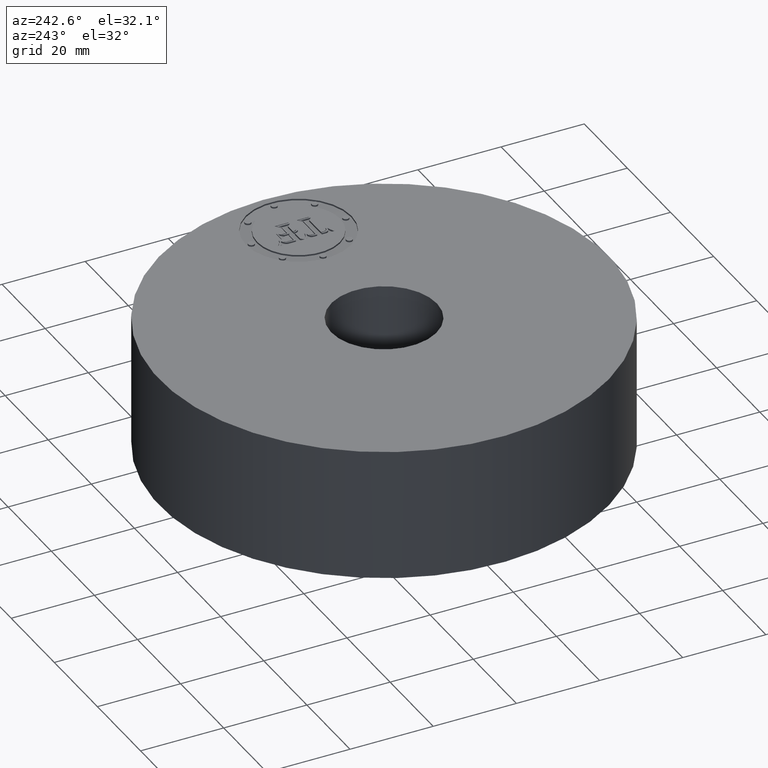
[diagram: clean part render]
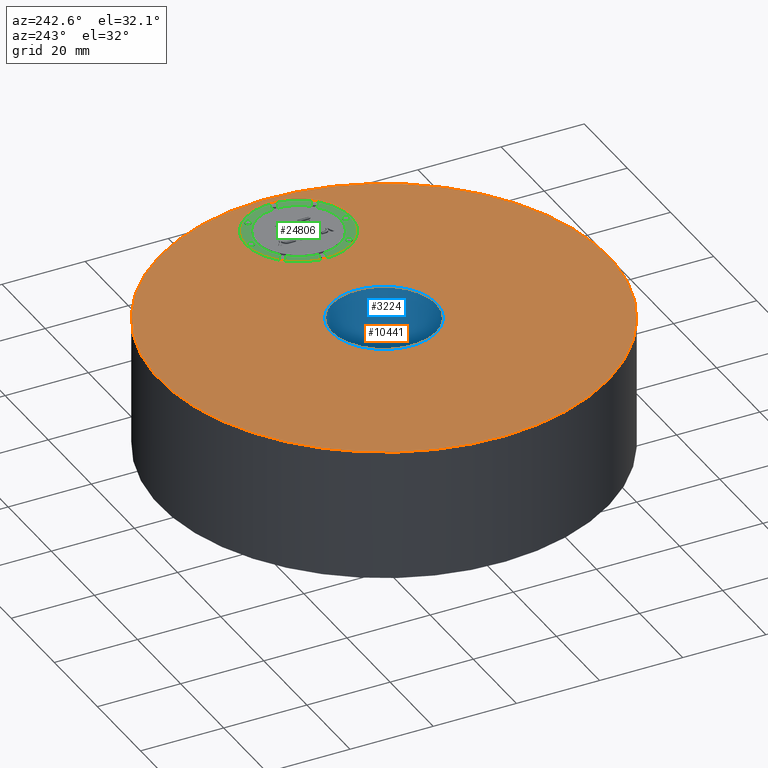
[diagram: same view with three faces highlighted in distinct colors, each labeled with its STEP entity id]
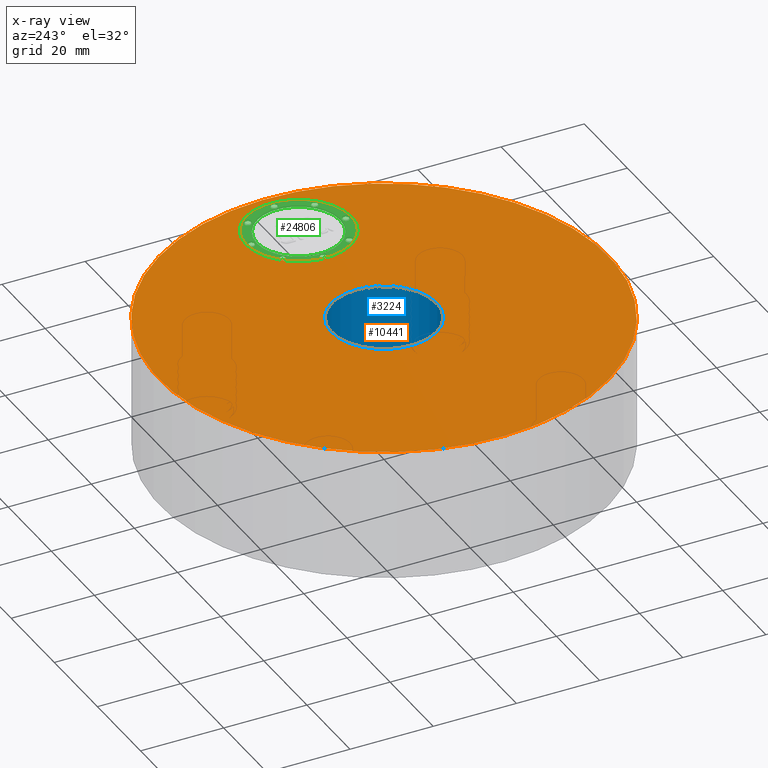
[diagram: x-ray of the same camera — body ghosted, the three highlighted faces saturated]
A machine part, auxiliary view with three faces highlighted in distinct colors.
The next image is the same camera in x-ray (body ghosted, the three faces saturated) — at least one of them is partly hidden behind the body in this view.
Their STEP definitions:

[orange] entity #10441 — the highlighted planar face has unit normal (0, 0, -1).
#2689=AXIS2_PLACEMENT_3D('Circle Axis2P3D',#2687,#2688,$) ;
#2708=AXIS2_PLACEMENT_3D('Circle Axis2P3D',#2706,#2707,$) ;
#3201=AXIS2_PLACEMENT_3D('Circle Axis2P3D',#3199,#3200,$) ;
#3227=AXIS2_PLACEMENT_3D('Circle Axis2P3D',#3225,#3226,$) ;
#10413=AXIS2_PLACEMENT_3D('Plane Axis2P3D',#10410,#10411,#10412) ;
#10425=AXIS2_PLACEMENT_3D('Circle Axis2P3D',#10423,#10424,$) ;
#10434=AXIS2_PLACEMENT_3D('Circle Axis2P3D',#10432,#10433,$) ;
#2684=CARTESIAN_POINT('Vertex',(-1.01877926954,-1.86486294402,1.25)) ;
#2687=CARTESIAN_POINT('Axis2P3D Location',(0.,0.,1.25)) ;
#2691=CARTESIAN_POINT('Vertex',(1.01877926954,1.86486294402,1.25)) ;
#2706=CARTESIAN_POINT('Axis2P3D Location',(0.,0.,1.25)) ;
#3199=CARTESIAN_POINT('Axis2P3D Location',(0.,0.,1.25000000001)) ;
#3203=CARTESIAN_POINT('Vertex',(0.239712769303,0.438791280947,1.25000000001)) ;
#3205=CARTESIAN_POINT('Vertex',(-0.239712769303,-0.438791280947,1.25000000001)) ;
#3225=CARTESIAN_POINT('Axis2P3D Location',(0.,0.,1.25000000001)) ;
#10410=CARTESIAN_POINT('Axis2P3D Location',(0.,0.500000000002,1.25000000001)) ;
#10423=CARTESIAN_POINT('Axis2P3D Location',(1.56000000001,0.,1.25000000001)) ;
#10427=CARTESIAN_POINT('Vertex',(1.56000000001,-0.499999995002,1.25000000001)) ;
#10429=CARTESIAN_POINT('Vertex',(1.56000000001,0.499999995002,1.25000000001)) ;
#10432=CARTESIAN_POINT('Axis2P3D Location',(1.56000000001,0.,1.25000000001)) ;
#2688=DIRECTION('Axis2P3D Direction',(0.,0.,-0.0393700787402)) ;
#2707=DIRECTION('Axis2P3D Direction',(0.,0.,-0.0393700787402)) ;
#3200=DIRECTION('Axis2P3D Direction',(0.,0.,-0.0393700787402)) ;
#3226=DIRECTION('Axis2P3D Direction',(0.,0.,-0.0393700787402)) ;
#10411=DIRECTION('Axis2P3D Direction',(0.,0.,-0.0393700787402)) ;
#10412=DIRECTION('Axis2P3D XDirection',(0.0393700787402,0.,0.)) ;
#10424=DIRECTION('Axis2P3D Direction',(0.,0.,-0.0393700787402)) ;
#10433=DIRECTION('Axis2P3D Direction',(0.,0.,-0.0393700787402)) ;
#10416=ORIENTED_EDGE('',*,*,#2710,.F.) ;
#10417=ORIENTED_EDGE('',*,*,#2693,.F.) ;
#10420=ORIENTED_EDGE('',*,*,#3229,.T.) ;
#10421=ORIENTED_EDGE('',*,*,#3207,.T.) ;
#10438=ORIENTED_EDGE('',*,*,#10431,.F.) ;
#10439=ORIENTED_EDGE('',*,*,#10436,.F.) ;
#10422=FACE_BOUND('',#10419,.T.) ;
#10440=FACE_BOUND('',#10437,.T.) ;
#10441=ADVANCED_FACE('PartBody',(#10418,#10422,#10440),#10414,.F.) ;
#2690=CIRCLE('generated circle',#2689,2.12500000001) ;
#2709=CIRCLE('generated circle',#2708,2.12500000001) ;
#3202=CIRCLE('generated circle',#3201,0.500000000002) ;
#3228=CIRCLE('generated circle',#3227,0.500000000002) ;
#10426=CIRCLE('generated circle',#10425,0.499999995002) ;
#10435=CIRCLE('generated circle',#10434,0.499999995002) ;
#2693=EDGE_CURVE('',#2685,#2692,#2690,.T.) ;
#2710=EDGE_CURVE('',#2692,#2685,#2709,.T.) ;
#3207=EDGE_CURVE('',#3204,#3206,#3202,.T.) ;
#3229=EDGE_CURVE('',#3206,#3204,#3228,.T.) ;
#10431=EDGE_CURVE('',#10428,#10430,#10426,.F.) ;
#10436=EDGE_CURVE('',#10430,#10428,#10435,.F.) ;
#10415=EDGE_LOOP('',(#10416,#10417)) ;
#10419=EDGE_LOOP('',(#10420,#10421)) ;
#10437=EDGE_LOOP('',(#10438,#10439)) ;
#10418=FACE_OUTER_BOUND('',#10415,.T.) ;
#10414=PLANE('',#10413) ;
#2685=VERTEX_POINT('',#2684) ;
#2692=VERTEX_POINT('',#2691) ;
#3204=VERTEX_POINT('',#3203) ;
#3206=VERTEX_POINT('',#3205) ;
#10428=VERTEX_POINT('',#10427) ;
#10430=VERTEX_POINT('',#10429) ;

[blue] entity #3224 — the highlighted cylindrical surface (partial cylindrical patch) has radius 12.7 mm, axis along (0, 0, -1).
#3177=AXIS2_PLACEMENT_3D('Circle Axis2P3D',#3175,#3176,$) ;
#3197=AXIS2_PLACEMENT_3D('Cylinder Axis2P3D',#3194,#3195,#3196) ;
#3201=AXIS2_PLACEMENT_3D('Circle Axis2P3D',#3199,#3200,$) ;
#3175=CARTESIAN_POINT('Axis2P3D Location',(0.,0.,-0.0625000000003)) ;
#3179=CARTESIAN_POINT('Vertex',(0.239712769303,0.438791280947,-0.0625000000003)) ;
#3181=CARTESIAN_POINT('Vertex',(-0.239712769303,-0.438791280947,-0.0625000000003)) ;
#3194=CARTESIAN_POINT('Axis2P3D Location',(0.,0.,0.593750000002)) ;
#3199=CARTESIAN_POINT('Axis2P3D Location',(0.,0.,1.25000000001)) ;
#3203=CARTESIAN_POINT('Vertex',(0.239712769303,0.438791280947,1.25000000001)) ;
#3205=CARTESIAN_POINT('Vertex',(-0.239712769303,-0.438791280947,1.25000000001)) ;
#3208=CARTESIAN_POINT('Line Origine',(0.239712769303,0.438791280947,0.593750000002)) ;
#3213=CARTESIAN_POINT('Line Origine',(-0.239712769303,-0.438791280947,0.593750000002)) ;
#3176=DIRECTION('Axis2P3D Direction',(0.,0.,-0.0393700787402)) ;
#3195=DIRECTION('Axis2P3D Direction',(0.,0.,-0.0393700787402)) ;
#3196=DIRECTION('Axis2P3D XDirection',(-0.0188750212049,-0.0345504945626,0.)) ;
#3200=DIRECTION('Axis2P3D Direction',(0.,0.,-0.0393700787402)) ;
#3209=DIRECTION('Vector Direction',(0.,0.,-0.0393700787402)) ;
#3214=DIRECTION('Vector Direction',(0.,0.,-0.0393700787402)) ;
#3210=VECTOR('Line Direction',#3209,0.0393700787402) ;
#3215=VECTOR('Line Direction',#3214,0.0393700787402) ;
#3219=ORIENTED_EDGE('',*,*,#3207,.F.) ;
#3220=ORIENTED_EDGE('',*,*,#3212,.T.) ;
#3221=ORIENTED_EDGE('',*,*,#3183,.T.) ;
#3222=ORIENTED_EDGE('',*,*,#3217,.F.) ;
#3224=ADVANCED_FACE('PartBody',(#3223),#3198,.F.) ;
#3178=CIRCLE('generated circle',#3177,0.500000000002) ;
#3202=CIRCLE('generated circle',#3201,0.500000000002) ;
#3198=CYLINDRICAL_SURFACE('generated cylinder',#3197,0.500000000002) ;
#3183=EDGE_CURVE('',#3180,#3182,#3178,.T.) ;
#3207=EDGE_CURVE('',#3204,#3206,#3202,.T.) ;
#3212=EDGE_CURVE('',#3204,#3180,#3211,.T.) ;
#3217=EDGE_CURVE('',#3206,#3182,#3216,.T.) ;
#3218=EDGE_LOOP('',(#3219,#3220,#3221,#3222)) ;
#3223=FACE_OUTER_BOUND('',#3218,.T.) ;
#3211=LINE('Line',#3208,#3210) ;
#3216=LINE('Line',#3213,#3215) ;
#3180=VERTEX_POINT('',#3179) ;
#3182=VERTEX_POINT('',#3181) ;
#3204=VERTEX_POINT('',#3203) ;
#3206=VERTEX_POINT('',#3205) ;

[green] entity #24806 — the highlighted planar face has unit normal (0, 0, 1).
#13453=AXIS2_PLACEMENT_3D('Plane Axis2P3D',#13450,#13451,#13452) ;
#24604=AXIS2_PLACEMENT_3D('Circle Axis2P3D',#24602,#24603,$) ;
#24623=AXIS2_PLACEMENT_3D('Circle Axis2P3D',#24621,#24622,$) ;
#24646=AXIS2_PLACEMENT_3D('Circle Axis2P3D',#24644,#24645,$) ;
#24655=AXIS2_PLACEMENT_3D('Circle Axis2P3D',#24653,#24654,$) ;
#24664=AXIS2_PLACEMENT_3D('Circle Axis2P3D',#24662,#24663,$) ;
#24673=AXIS2_PLACEMENT_3D('Circle Axis2P3D',#24671,#24672,$) ;
#24682=AXIS2_PLACEMENT_3D('Circle Axis2P3D',#24680,#24681,$) ;
#24691=AXIS2_PLACEMENT_3D('Circle Axis2P3D',#24689,#24690,$) ;
#24700=AXIS2_PLACEMENT_3D('Circle Axis2P3D',#24698,#24699,$) ;
#24709=AXIS2_PLACEMENT_3D('Circle Axis2P3D',#24707,#24708,$) ;
#24718=AXIS2_PLACEMENT_3D('Circle Axis2P3D',#24716,#24717,$) ;
#24727=AXIS2_PLACEMENT_3D('Circle Axis2P3D',#24725,#24726,$) ;
#24736=AXIS2_PLACEMENT_3D('Circle Axis2P3D',#24734,#24735,$) ;
#24745=AXIS2_PLACEMENT_3D('Circle Axis2P3D',#24743,#24744,$) ;
#24754=AXIS2_PLACEMENT_3D('Circle Axis2P3D',#24752,#24753,$) ;
#24763=AXIS2_PLACEMENT_3D('Circle Axis2P3D',#24761,#24762,$) ;
#24772=AXIS2_PLACEMENT_3D('Circle Axis2P3D',#24770,#24771,$) ;
#24781=AXIS2_PLACEMENT_3D('Circle Axis2P3D',#24779,#24780,$) ;
#24790=AXIS2_PLACEMENT_3D('Circle Axis2P3D',#24788,#24789,$) ;
#24799=AXIS2_PLACEMENT_3D('Circle Axis2P3D',#24797,#24798,$) ;
#13450=CARTESIAN_POINT('Axis2P3D Location',(0.,0.,1.235)) ;
#24592=CARTESIAN_POINT('Vertex',(1.56000000001,0.499999995002,1.235)) ;
#24599=CARTESIAN_POINT('Vertex',(1.56000000001,-0.499999995002,1.235)) ;
#24602=CARTESIAN_POINT('Axis2P3D Location',(1.56000000001,0.,1.235)) ;
#24621=CARTESIAN_POINT('Axis2P3D Location',(1.56000000001,0.,1.235)) ;
#24644=CARTESIAN_POINT('Axis2P3D Location',(1.56000000001,0.,1.235)) ;
#24648=CARTESIAN_POINT('Vertex',(1.56000000001,-0.393939390002,1.235)) ;
#24650=CARTESIAN_POINT('Vertex',(1.56000000001,0.393939390002,1.235)) ;
#24653=CARTESIAN_POINT('Axis2P3D Location',(1.56000000001,0.,1.235)) ;
#24662=CARTESIAN_POINT('Axis2P3D Location',(1.1130303075,-1.27155105343E-015,1.235)) ;
#24666=CARTESIAN_POINT('Vertex',(1.1130303075,-0.0303030300001,1.235)) ;
#24668=CARTESIAN_POINT('Vertex',(1.1130303075,0.0303030300001,1.235)) ;
#24671=CARTESIAN_POINT('Axis2P3D Location',(1.1130303075,-1.27155105343E-015,1.235)) ;
#24680=CARTESIAN_POINT('Axis2P3D Location',(1.56000000001,0.446969692502,1.235)) ;
#24684=CARTESIAN_POINT('Vertex',(1.56000000001,0.416666662502,1.235)) ;
#24686=CARTESIAN_POINT('Vertex',(1.56000000001,0.477272722502,1.235)) ;
#24689=CARTESIAN_POINT('Axis2P3D Location',(1.56000000001,0.446969692502,1.235)) ;
#24698=CARTESIAN_POINT('Axis2P3D Location',(1.24394469945,0.316055300553,1.235)) ;
#24702=CARTESIAN_POINT('Vertex',(1.24394469945,0.285752270553,1.235)) ;
#24704=CARTESIAN_POINT('Vertex',(1.24394469945,0.346358330553,1.235)) ;
#24707=CARTESIAN_POINT('Axis2P3D Location',(1.24394469945,0.316055300553,1.235)) ;
#24716=CARTESIAN_POINT('Axis2P3D Location',(2.00696969251,1.17265263816E-014,1.235)) ;
#24720=CARTESIAN_POINT('Vertex',(2.00696969251,-0.0303030300001,1.235)) ;
#24722=CARTESIAN_POINT('Vertex',(2.00696969251,0.0303030300001,1.235)) ;
#24725=CARTESIAN_POINT('Axis2P3D Location',(2.00696969251,1.17265263816E-014,1.235)) ;
#24734=CARTESIAN_POINT('Axis2P3D Location',(1.87605530056,0.316055300553,1.235)) ;
#24738=CARTESIAN_POINT('Vertex',(1.87605530056,0.285752270553,1.235)) ;
#24740=CARTESIAN_POINT('Vertex',(1.87605530056,0.346358330553,1.235)) ;
#24743=CARTESIAN_POINT('Axis2P3D Location',(1.87605530056,0.316055300553,1.235)) ;
#24752=CARTESIAN_POINT('Axis2P3D Location',(1.56000000001,-0.446969692502,1.235)) ;
#24756=CARTESIAN_POINT('Vertex',(1.56000000001,-0.416666662502,1.235)) ;
#24758=CARTESIAN_POINT('Vertex',(1.56000000001,-0.477272722502,1.235)) ;
#24761=CARTESIAN_POINT('Axis2P3D Location',(1.56000000001,-0.446969692502,1.235)) ;
#24770=CARTESIAN_POINT('Axis2P3D Location',(1.24394469945,-0.316055300553,1.235)) ;
#24774=CARTESIAN_POINT('Vertex',(1.24394469945,-0.285752270553,1.235)) ;
#24776=CARTESIAN_POINT('Vertex',(1.24394469945,-0.346358330553,1.235)) ;
#24779=CARTESIAN_POINT('Axis2P3D Location',(1.24394469945,-0.316055300553,1.235)) ;
#24788=CARTESIAN_POINT('Axis2P3D Location',(1.87605530056,-0.316055300553,1.235)) ;
#24792=CARTESIAN_POINT('Vertex',(1.87605530056,-0.285752270553,1.235)) ;
#24794=CARTESIAN_POINT('Vertex',(1.87605530056,-0.346358330553,1.235)) ;
#24797=CARTESIAN_POINT('Axis2P3D Location',(1.87605530056,-0.316055300553,1.235)) ;
#13451=DIRECTION('Axis2P3D Direction',(0.,0.,0.0393700787402)) ;
#13452=DIRECTION('Axis2P3D XDirection',(0.0393700787402,0.,0.)) ;
#24603=DIRECTION('Axis2P3D Direction',(0.,0.,0.0393700787402)) ;
#24622=DIRECTION('Axis2P3D Direction',(0.,0.,0.0393700787402)) ;
#24645=DIRECTION('Axis2P3D Direction',(0.,0.,0.0393700787402)) ;
#24654=DIRECTION('Axis2P3D Direction',(0.,0.,0.0393700787402)) ;
#24663=DIRECTION('Axis2P3D Direction',(0.,0.,0.0393700787402)) ;
#24672=DIRECTION('Axis2P3D Direction',(0.,0.,0.0393700787402)) ;
#24681=DIRECTION('Axis2P3D Direction',(0.,0.,0.0393700787402)) ;
#24690=DIRECTION('Axis2P3D Direction',(0.,0.,0.0393700787402)) ;
#24699=DIRECTION('Axis2P3D Direction',(0.,0.,0.0393700787402)) ;
#24708=DIRECTION('Axis2P3D Direction',(0.,0.,0.0393700787402)) ;
#24717=DIRECTION('Axis2P3D Direction',(0.,0.,0.0393700787402)) ;
#24726=DIRECTION('Axis2P3D Direction',(0.,0.,0.0393700787402)) ;
#24735=DIRECTION('Axis2P3D Direction',(0.,0.,0.0393700787402)) ;
#24744=DIRECTION('Axis2P3D Direction',(0.,0.,0.0393700787402)) ;
#24753=DIRECTION('Axis2P3D Direction',(0.,0.,0.0393700787402)) ;
#24762=DIRECTION('Axis2P3D Direction',(0.,0.,0.0393700787402)) ;
#24771=DIRECTION('Axis2P3D Direction',(0.,0.,0.0393700787402)) ;
#24780=DIRECTION('Axis2P3D Direction',(0.,0.,0.0393700787402)) ;
#24789=DIRECTION('Axis2P3D Direction',(0.,0.,0.0393700787402)) ;
#24798=DIRECTION('Axis2P3D Direction',(0.,0.,0.0393700787402)) ;
#24641=ORIENTED_EDGE('',*,*,#24606,.T.) ;
#24642=ORIENTED_EDGE('',*,*,#24625,.T.) ;
#24659=ORIENTED_EDGE('',*,*,#24652,.F.) ;
#24660=ORIENTED_EDGE('',*,*,#24657,.F.) ;
#24677=ORIENTED_EDGE('',*,*,#24670,.F.) ;
#24678=ORIENTED_EDGE('',*,*,#24675,.F.) ;
#24695=ORIENTED_EDGE('',*,*,#24688,.F.) ;
#24696=ORIENTED_EDGE('',*,*,#24693,.F.) ;
#24713=ORIENTED_EDGE('',*,*,#24706,.F.) ;
#24714=ORIENTED_EDGE('',*,*,#24711,.F.) ;
#24731=ORIENTED_EDGE('',*,*,#24724,.F.) ;
#24732=ORIENTED_EDGE('',*,*,#24729,.F.) ;
#24749=ORIENTED_EDGE('',*,*,#24742,.F.) ;
#24750=ORIENTED_EDGE('',*,*,#24747,.F.) ;
#24767=ORIENTED_EDGE('',*,*,#24760,.F.) ;
#24768=ORIENTED_EDGE('',*,*,#24765,.F.) ;
#24785=ORIENTED_EDGE('',*,*,#24778,.F.) ;
#24786=ORIENTED_EDGE('',*,*,#24783,.F.) ;
#24803=ORIENTED_EDGE('',*,*,#24796,.F.) ;
#24804=ORIENTED_EDGE('',*,*,#24801,.F.) ;
#24661=FACE_BOUND('',#24658,.T.) ;
#24679=FACE_BOUND('',#24676,.T.) ;
#24697=FACE_BOUND('',#24694,.T.) ;
#24715=FACE_BOUND('',#24712,.T.) ;
#24733=FACE_BOUND('',#24730,.T.) ;
#24751=FACE_BOUND('',#24748,.T.) ;
#24769=FACE_BOUND('',#24766,.T.) ;
#24787=FACE_BOUND('',#24784,.T.) ;
#24805=FACE_BOUND('',#24802,.T.) ;
#24806=ADVANCED_FACE('PartBody',(#24643,#24661,#24679,#24697,#24715,#24733,#24751,#24769,#24787,#24805),#13454,.T.) ;
#24605=CIRCLE('generated circle',#24604,0.499999995002) ;
#24624=CIRCLE('generated circle',#24623,0.499999995002) ;
#24647=CIRCLE('generated circle',#24646,0.393939390002) ;
#24656=CIRCLE('generated circle',#24655,0.393939390002) ;
#24665=CIRCLE('generated circle',#24664,0.0303030300001) ;
#24674=CIRCLE('generated circle',#24673,0.0303030300001) ;
#24683=CIRCLE('generated circle',#24682,0.0303030300001) ;
#24692=CIRCLE('generated circle',#24691,0.0303030300001) ;
#24701=CIRCLE('generated circle',#24700,0.0303030300001) ;
#24710=CIRCLE('generated circle',#24709,0.0303030300001) ;
#24719=CIRCLE('generated circle',#24718,0.0303030300001) ;
#24728=CIRCLE('generated circle',#24727,0.0303030300001) ;
#24737=CIRCLE('generated circle',#24736,0.0303030300001) ;
#24746=CIRCLE('generated circle',#24745,0.0303030300001) ;
#24755=CIRCLE('generated circle',#24754,0.0303030300001) ;
#24764=CIRCLE('generated circle',#24763,0.0303030300001) ;
#24773=CIRCLE('generated circle',#24772,0.0303030300001) ;
#24782=CIRCLE('generated circle',#24781,0.0303030300001) ;
#24791=CIRCLE('generated circle',#24790,0.0303030300001) ;
#24800=CIRCLE('generated circle',#24799,0.0303030300001) ;
#24606=EDGE_CURVE('',#24593,#24600,#24605,.T.) ;
#24625=EDGE_CURVE('',#24600,#24593,#24624,.T.) ;
#24652=EDGE_CURVE('',#24649,#24651,#24647,.T.) ;
#24657=EDGE_CURVE('',#24651,#24649,#24656,.T.) ;
#24670=EDGE_CURVE('',#24667,#24669,#24665,.T.) ;
#24675=EDGE_CURVE('',#24669,#24667,#24674,.T.) ;
#24688=EDGE_CURVE('',#24685,#24687,#24683,.T.) ;
#24693=EDGE_CURVE('',#24687,#24685,#24692,.T.) ;
#24706=EDGE_CURVE('',#24703,#24705,#24701,.T.) ;
#24711=EDGE_CURVE('',#24705,#24703,#24710,.T.) ;
#24724=EDGE_CURVE('',#24721,#24723,#24719,.T.) ;
#24729=EDGE_CURVE('',#24723,#24721,#24728,.T.) ;
#24742=EDGE_CURVE('',#24739,#24741,#24737,.T.) ;
#24747=EDGE_CURVE('',#24741,#24739,#24746,.T.) ;
#24760=EDGE_CURVE('',#24757,#24759,#24755,.T.) ;
#24765=EDGE_CURVE('',#24759,#24757,#24764,.T.) ;
#24778=EDGE_CURVE('',#24775,#24777,#24773,.T.) ;
#24783=EDGE_CURVE('',#24777,#24775,#24782,.T.) ;
#24796=EDGE_CURVE('',#24793,#24795,#24791,.T.) ;
#24801=EDGE_CURVE('',#24795,#24793,#24800,.T.) ;
#24640=EDGE_LOOP('',(#24641,#24642)) ;
#24658=EDGE_LOOP('',(#24659,#24660)) ;
#24676=EDGE_LOOP('',(#24677,#24678)) ;
#24694=EDGE_LOOP('',(#24695,#24696)) ;
#24712=EDGE_LOOP('',(#24713,#24714)) ;
#24730=EDGE_LOOP('',(#24731,#24732)) ;
#24748=EDGE_LOOP('',(#24749,#24750)) ;
#24766=EDGE_LOOP('',(#24767,#24768)) ;
#24784=EDGE_LOOP('',(#24785,#24786)) ;
#24802=EDGE_LOOP('',(#24803,#24804)) ;
#24643=FACE_OUTER_BOUND('',#24640,.T.) ;
#13454=PLANE('',#13453) ;
#24593=VERTEX_POINT('',#24592) ;
#24600=VERTEX_POINT('',#24599) ;
#24649=VERTEX_POINT('',#24648) ;
#24651=VERTEX_POINT('',#24650) ;
#24667=VERTEX_POINT('',#24666) ;
#24669=VERTEX_POINT('',#24668) ;
#24685=VERTEX_POINT('',#24684) ;
#24687=VERTEX_POINT('',#24686) ;
#24703=VERTEX_POINT('',#24702) ;
#24705=VERTEX_POINT('',#24704) ;
#24721=VERTEX_POINT('',#24720) ;
#24723=VERTEX_POINT('',#24722) ;
#24739=VERTEX_POINT('',#24738) ;
#24741=VERTEX_POINT('',#24740) ;
#24757=VERTEX_POINT('',#24756) ;
#24759=VERTEX_POINT('',#24758) ;
#24775=VERTEX_POINT('',#24774) ;
#24777=VERTEX_POINT('',#24776) ;
#24793=VERTEX_POINT('',#24792) ;
#24795=VERTEX_POINT('',#24794) ;